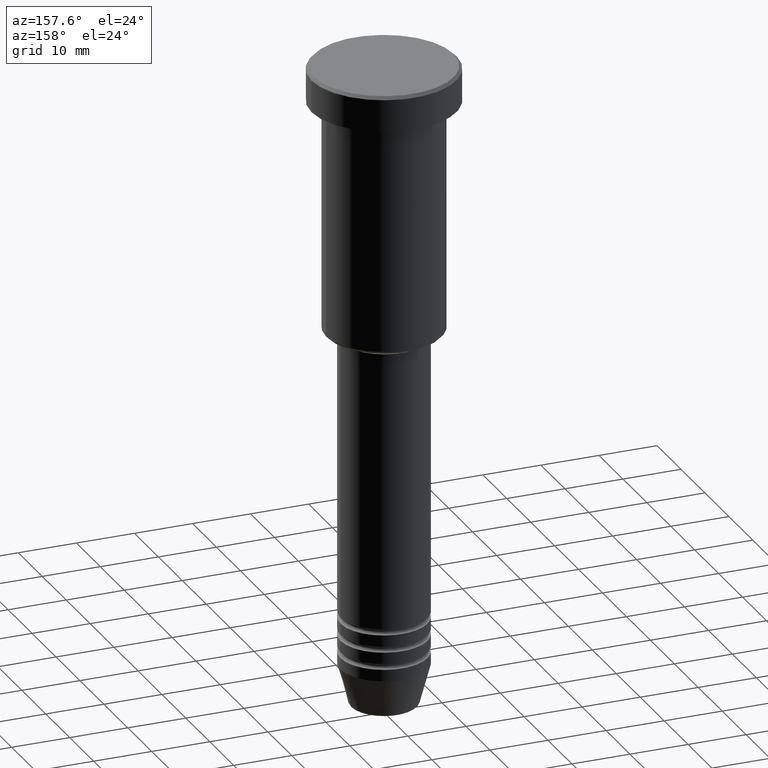
[diagram: clean part render]
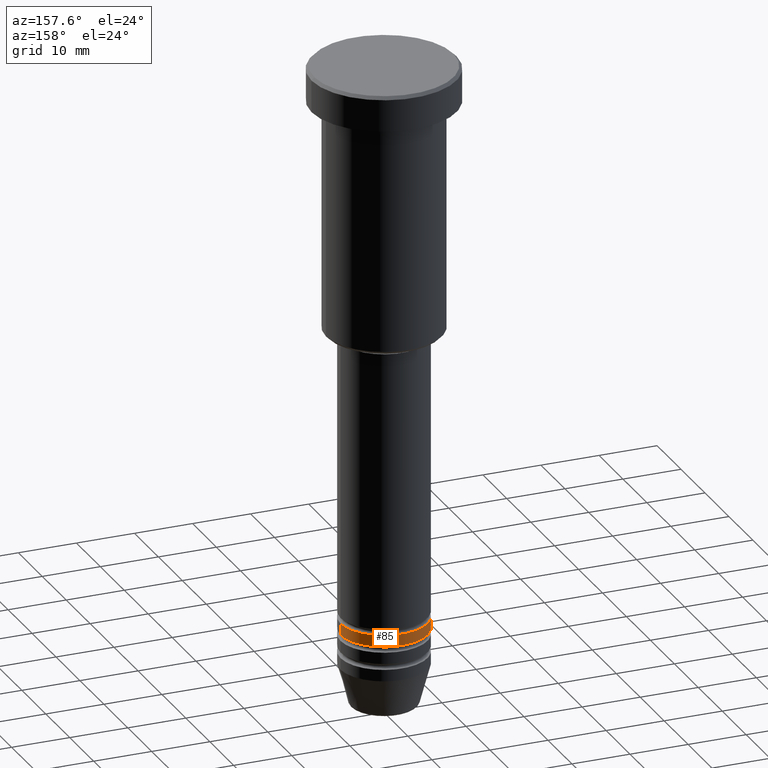
[diagram: same view with one face highlighted and labeled with its STEP entity id]
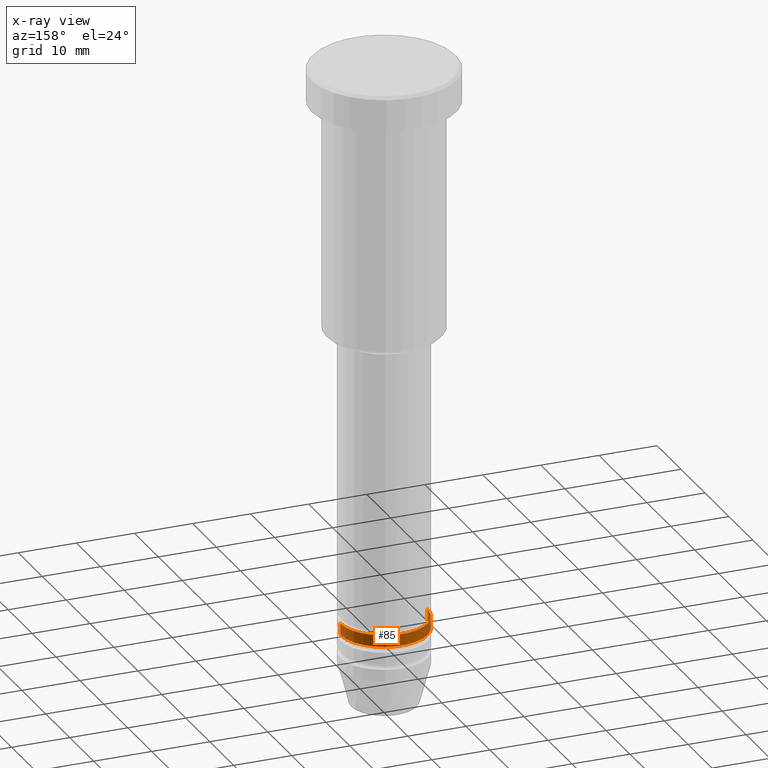
[diagram: x-ray of the same camera — body ghosted, the highlighted face saturated]
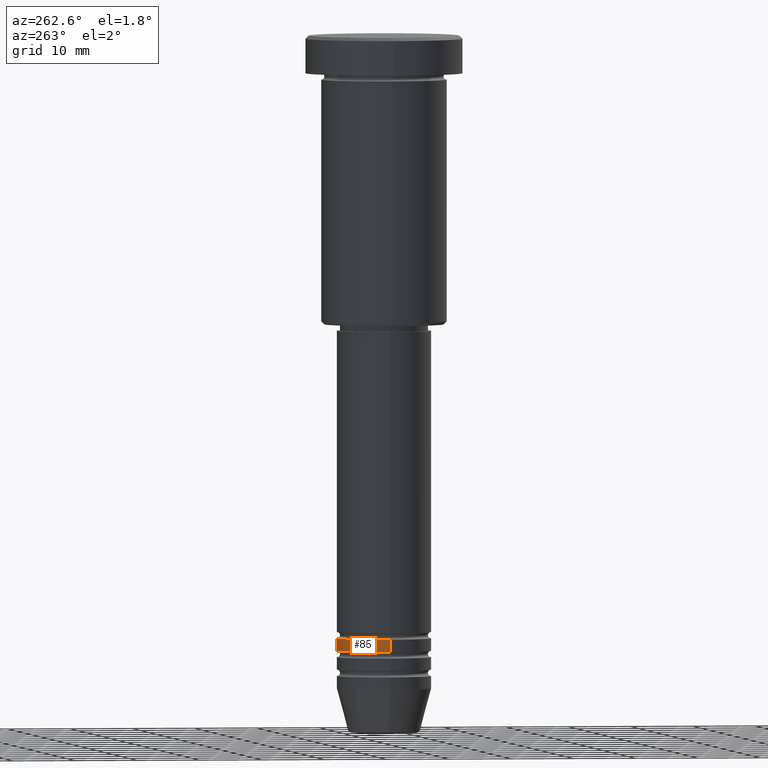
[diagram: same view with one face highlighted and labeled with its STEP entity id]
A machine part, auxiliary view. The second image highlights one B-rep face of the part: STEP entity #85.
The next image is the same camera in x-ray: the body ghosted, the highlighted face saturated — about 0% of this face is hidden behind the body in this view.
A second angle (auxiliary view) of the same face is appended — the face is thin or edge-on in the first view.
In plain terms, the highlighted cylindrical surface (partial cylindrical patch) has radius 7.5 mm, axis along (-0, -0, 1).
Its self-contained STEP definition (entity closure, byte-faithful):
#8 = DIRECTION ( 'NONE',  ( 1.000000000000000000, 0.000000000000000000, 0.000000000000000000 ) ) ;
#18 = VECTOR ( 'NONE', #436, 1000.000000000000000 ) ;
#20 = CYLINDRICAL_SURFACE ( 'NONE', #528, 7.500000000000000000 ) ;
#34 = VERTEX_POINT ( 'NONE', #276 ) ;
#47 = EDGE_LOOP ( 'NONE', ( #780, #309, #310, #922 ) ) ;
#83 = CARTESIAN_POINT ( 'NONE',  ( -7.500000000000000000, 9.184850993605147944E-16, 0.000000000000000000 ) ) ;
#85 = ADVANCED_FACE ( 'NONE', ( #359 ), #20, .T. ) ;
#91 = EDGE_CURVE ( 'NONE', #377, #153, #370, .T. ) ;
#125 = EDGE_CURVE ( 'NONE', #377, #801, #1179, .T. ) ;
#153 = VERTEX_POINT ( 'NONE', #1131 ) ;
#169 = CIRCLE ( 'NONE', #617, 7.500000000000000000 ) ;
#184 = DIRECTION ( 'NONE',  ( -0.000000000000000000, -0.000000000000000000, 1.000000000000000000 ) ) ;
#276 = CARTESIAN_POINT ( 'NONE',  ( -7.500000000000000000, 9.184850993605147944E-16, -95.99999999999998579 ) ) ;
#284 = DIRECTION ( 'NONE',  ( -0.000000000000000000, -0.000000000000000000, 1.000000000000000000 ) ) ;
#309 = ORIENTED_EDGE ( 'NONE', *, *, #393, .T. ) ;
#310 = ORIENTED_EDGE ( 'NONE', *, *, #526, .F. ) ;
#344 = LINE ( 'NONE', #83, #18 ) ;
#359 = FACE_OUTER_BOUND ( 'NONE', #47, .T. ) ;
#370 = LINE ( 'NONE', #717, #768 ) ;
#377 = VERTEX_POINT ( 'NONE', #1169 ) ;
#392 = AXIS2_PLACEMENT_3D ( 'NONE', #735, #184, #545 ) ;
#393 = EDGE_CURVE ( 'NONE', #801, #34, #344, .T. ) ;
#436 = DIRECTION ( 'NONE',  ( -0.000000000000000000, -0.000000000000000000, 1.000000000000000000 ) ) ;
#526 = EDGE_CURVE ( 'NONE', #153, #34, #169, .T. ) ;
#528 = AXIS2_PLACEMENT_3D ( 'NONE', #1006, #284, #8 ) ;
#545 = DIRECTION ( 'NONE',  ( 1.000000000000000000, 0.000000000000000000, 0.000000000000000000 ) ) ;
#617 = AXIS2_PLACEMENT_3D ( 'NONE', #823, #1100, #650 ) ;
#650 = DIRECTION ( 'NONE',  ( 1.000000000000000000, 0.000000000000000000, 0.000000000000000000 ) ) ;
#717 = CARTESIAN_POINT ( 'NONE',  ( 7.500000000000000000, 0.000000000000000000, 0.000000000000000000 ) ) ;
#728 = DIRECTION ( 'NONE',  ( -0.000000000000000000, -0.000000000000000000, 1.000000000000000000 ) ) ;
#735 = CARTESIAN_POINT ( 'NONE',  ( 0.000000000000000000, 0.000000000000000000, -97.99999999999997158 ) ) ;
#768 = VECTOR ( 'NONE', #728, 1000.000000000000000 ) ;
#780 = ORIENTED_EDGE ( 'NONE', *, *, #125, .T. ) ;
#801 = VERTEX_POINT ( 'NONE', #1092 ) ;
#823 = CARTESIAN_POINT ( 'NONE',  ( 0.000000000000000000, 0.000000000000000000, -95.99999999999998579 ) ) ;
#922 = ORIENTED_EDGE ( 'NONE', *, *, #91, .F. ) ;
#1006 = CARTESIAN_POINT ( 'NONE',  ( 0.000000000000000000, 0.000000000000000000, 0.000000000000000000 ) ) ;
#1092 = CARTESIAN_POINT ( 'NONE',  ( -7.500000000000000000, 9.184850993605147944E-16, -97.99999999999997158 ) ) ;
#1100 = DIRECTION ( 'NONE',  ( -0.000000000000000000, -0.000000000000000000, 1.000000000000000000 ) ) ;
#1131 = CARTESIAN_POINT ( 'NONE',  ( 7.500000000000000000, 0.000000000000000000, -95.99999999999998579 ) ) ;
#1169 = CARTESIAN_POINT ( 'NONE',  ( 7.500000000000000000, 0.000000000000000000, -97.99999999999997158 ) ) ;
#1179 = CIRCLE ( 'NONE', #392, 7.500000000000000000 ) ;